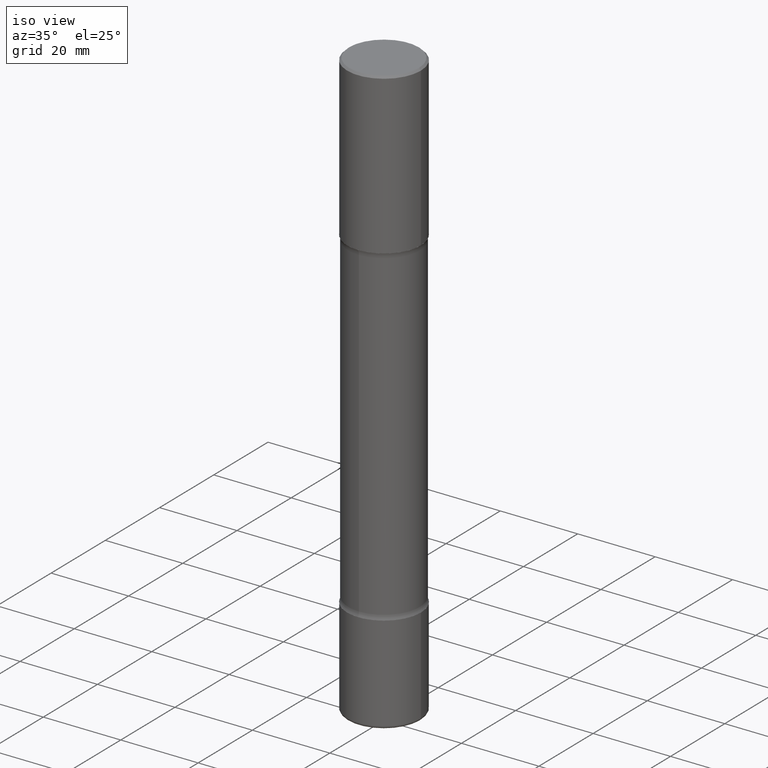
[diagram: clean part render]
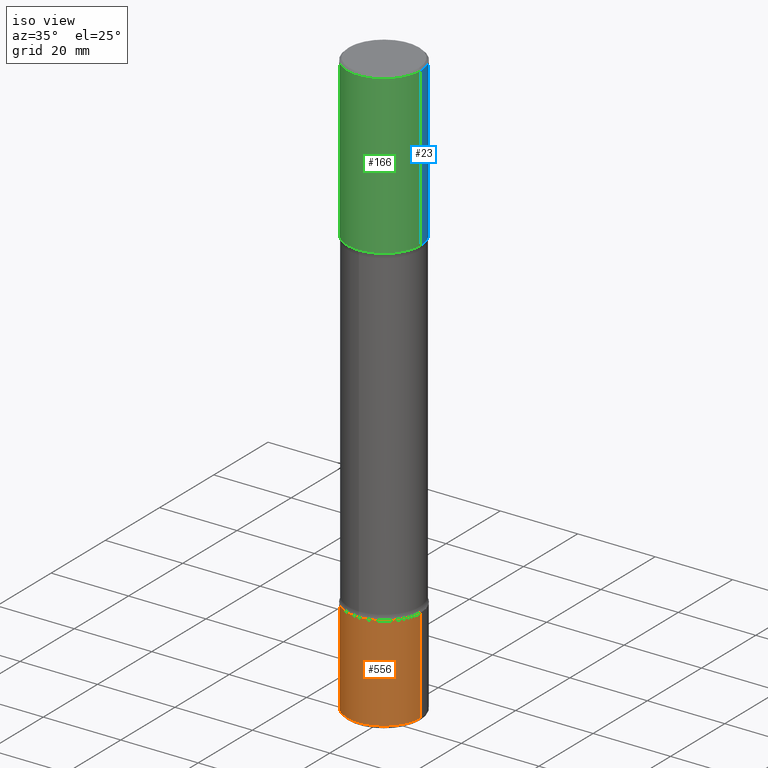
[diagram: same view with three faces highlighted in distinct colors, each labeled with its STEP entity id]
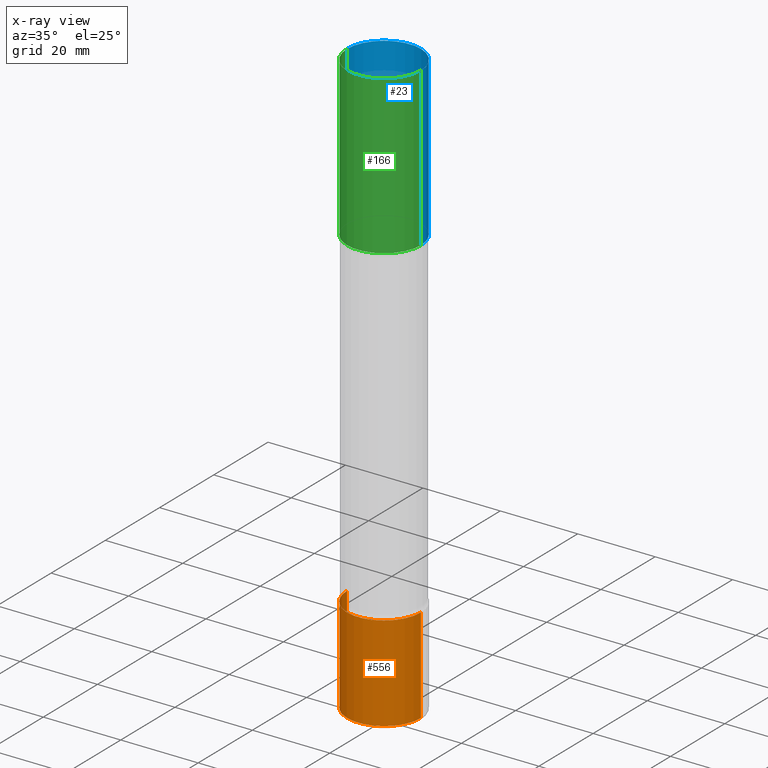
[diagram: x-ray of the same camera — body ghosted, the three highlighted faces saturated]
A machine part, iso view with three faces highlighted in distinct colors.
The next image is the same camera in x-ray (body ghosted, the three faces saturated) — at least one of them is partly hidden behind the body in this view.
Their STEP definitions:

[orange] entity #556 — the highlighted cylindrical surface (partial cylindrical patch) has radius 9.525 mm, axis along (-0, 0, 1).
#7 = DIRECTION ( 'NONE',  ( -2.445468806185136597E-29, 3.491481338843145583E-15, 1.000000000000000000 ) ) ;
#25 = ORIENTED_EDGE ( 'NONE', *, *, #45, .T. ) ;
#40 = CARTESIAN_POINT ( 'NONE',  ( -0.3750000000000002220, 2.664535259100377275E-15, -1.844600658845590719E-29 ) ) ;
#45 = EDGE_CURVE ( 'NONE', #286, #310, #140, .T. ) ;
#52 = ORIENTED_EDGE ( 'NONE', *, *, #425, .F. ) ;
#104 = EDGE_CURVE ( 'NONE', #463, #310, #357, .T. ) ;
#138 = DIRECTION ( 'NONE',  ( 1.000000000000000000, -6.982962677686266711E-15, 4.876176775795935793E-29 ) ) ;
#139 = CARTESIAN_POINT ( 'NONE',  ( 0.3750000000000002220, -2.618611004132351594E-15, 1.828566290923477043E-29 ) ) ;
#140 = LINE ( 'NONE', #139, #503 ) ;
#174 = CARTESIAN_POINT ( 'NONE',  ( -0.3750000000000002220, -1.648623988445427734E-14, -5.000000000000000000 ) ) ;
#176 = FACE_OUTER_BOUND ( 'NONE', #320, .T. ) ;
#180 = DIRECTION ( 'NONE',  ( -2.445468806185136877E-29, 3.491481338843145188E-15, 1.000000000000000000 ) ) ;
#193 = DIRECTION ( 'NONE',  ( 1.000000000000000000, -6.982962677686263555E-15, 0.000000000000000000 ) ) ;
#211 = VECTOR ( 'NONE', #220, 39.37007874015748143 ) ;
#217 = LINE ( 'NONE', #40, #211 ) ;
#219 = CARTESIAN_POINT ( 'NONE',  ( 1.459944877292526494E-28, -2.084414359289357934E-14, -5.969999999999999751 ) ) ;
#220 = DIRECTION ( 'NONE',  ( -2.445468806185136877E-29, 3.491481338843145188E-15, 1.000000000000000000 ) ) ;
#228 = CYLINDRICAL_SURFACE ( 'NONE', #293, 0.3750000000000002220 ) ;
#242 = CARTESIAN_POINT ( 'NONE',  ( -0.3750000000000002776, -1.817960833379319733E-14, -5.969999999999999751 ) ) ;
#250 = VERTEX_POINT ( 'NONE', #242 ) ;
#258 = AXIS2_PLACEMENT_3D ( 'NONE', #323, #7, #193 ) ;
#260 = DIRECTION ( 'NONE',  ( -2.445468806185136597E-29, 3.491481338843145583E-15, 1.000000000000000000 ) ) ;
#280 = CIRCLE ( 'NONE', #393, 0.3750000000000001665 ) ;
#286 = VERTEX_POINT ( 'NONE', #292 ) ;
#292 = CARTESIAN_POINT ( 'NONE',  ( 0.3750000000000002776, -2.346275459702592935E-14, -5.969999999999999751 ) ) ;
#293 = AXIS2_PLACEMENT_3D ( 'NONE', #438, #347, #138 ) ;
#310 = VERTEX_POINT ( 'NONE', #516 ) ;
#320 = EDGE_LOOP ( 'NONE', ( #52, #488, #25, #489 ) ) ;
#323 = CARTESIAN_POINT ( 'NONE',  ( 1.222734403092568523E-28, -1.745740669421572989E-14, -5.000000000000000000 ) ) ;
#347 = DIRECTION ( 'NONE',  ( -2.445468806185136597E-29, 3.491481338843145583E-15, 1.000000000000000000 ) ) ;
#357 = CIRCLE ( 'NONE', #258, 0.3750000000000002220 ) ;
#393 = AXIS2_PLACEMENT_3D ( 'NONE', #219, #260, #515 ) ;
#402 = EDGE_CURVE ( 'NONE', #250, #286, #280, .T. ) ;
#425 = EDGE_CURVE ( 'NONE', #250, #463, #217, .T. ) ;
#438 = CARTESIAN_POINT ( 'NONE',  ( 0.000000000000000000, 0.000000000000000000, 0.000000000000000000 ) ) ;
#463 = VERTEX_POINT ( 'NONE', #174 ) ;
#488 = ORIENTED_EDGE ( 'NONE', *, *, #402, .T. ) ;
#489 = ORIENTED_EDGE ( 'NONE', *, *, #104, .F. ) ;
#503 = VECTOR ( 'NONE', #180, 39.37007874015748143 ) ;
#515 = DIRECTION ( 'NONE',  ( 1.000000000000000000, -6.982962677686269866E-15, 0.000000000000000000 ) ) ;
#516 = CARTESIAN_POINT ( 'NONE',  ( 0.3750000000000002220, -2.007601769834807990E-14, -5.000000000000000000 ) ) ;
#556 = ADVANCED_FACE ( 'NONE', ( #176 ), #228, .T. ) ;

[blue] entity #23 — the highlighted cylindrical surface (partial cylindrical patch) has radius 9.525 mm, axis along (-0, 0, 1).
#23 = ADVANCED_FACE ( 'NONE', ( #187 ), #445, .T. ) ;
#30 = DIRECTION ( 'NONE',  ( 1.000000000000000000, -6.982962677686266711E-15, 0.000000000000000000 ) ) ;
#42 = LINE ( 'NONE', #79, #338 ) ;
#46 = CIRCLE ( 'NONE', #126, 0.3750000000000007772 ) ;
#47 = CARTESIAN_POINT ( 'NONE',  ( 0.000000000000000000, 0.000000000000000000, 0.000000000000000000 ) ) ;
#79 = CARTESIAN_POINT ( 'NONE',  ( 0.3750000000000008327, -2.618611004132355933E-15, 1.828566290923479846E-29 ) ) ;
#80 = DIRECTION ( 'NONE',  ( -2.445468806185136597E-29, 3.491481338843145583E-15, 1.000000000000000000 ) ) ;
#126 = AXIS2_PLACEMENT_3D ( 'NONE', #456, #507, #30 ) ;
#128 = LINE ( 'NONE', #304, #142 ) ;
#142 = VECTOR ( 'NONE', #380, 39.37007874015748143 ) ;
#145 = VERTEX_POINT ( 'NONE', #450 ) ;
#149 = VERTEX_POINT ( 'NONE', #501 ) ;
#175 = CARTESIAN_POINT ( 'NONE',  ( 3.973886810050846409E-29, -5.673657175620110635E-15, -1.624999999999999778 ) ) ;
#187 = FACE_OUTER_BOUND ( 'NONE', #263, .T. ) ;
#231 = DIRECTION ( 'NONE',  ( 1.000000000000000000, -6.982962677686266711E-15, 4.876176775795935232E-29 ) ) ;
#243 = ORIENTED_EDGE ( 'NONE', *, *, #298, .F. ) ;
#263 = EDGE_LOOP ( 'NONE', ( #422, #455, #243, #339 ) ) ;
#277 = VERTEX_POINT ( 'NONE', #331 ) ;
#291 = AXIS2_PLACEMENT_3D ( 'NONE', #175, #80, #465 ) ;
#297 = DIRECTION ( 'NONE',  ( -2.445468806185136877E-29, 3.491481338843145188E-15, 1.000000000000000000 ) ) ;
#298 = EDGE_CURVE ( 'NONE', #145, #364, #46, .T. ) ;
#304 = CARTESIAN_POINT ( 'NONE',  ( -0.3750000000000008327, 2.664535259100381613E-15, -1.844600658845593802E-29 ) ) ;
#306 = CARTESIAN_POINT ( 'NONE',  ( -0.3750000000000007772, 2.548781377355492635E-15, -0.02000000000000000042 ) ) ;
#331 = CARTESIAN_POINT ( 'NONE',  ( 0.3750000000000009437, -8.292268179752466962E-15, -1.624999999999999778 ) ) ;
#333 = EDGE_CURVE ( 'NONE', #149, #364, #128, .T. ) ;
#336 = AXIS2_PLACEMENT_3D ( 'NONE', #47, #353, #231 ) ;
#338 = VECTOR ( 'NONE', #297, 39.37007874015748143 ) ;
#339 = ORIENTED_EDGE ( 'NONE', *, *, #378, .F. ) ;
#341 = EDGE_CURVE ( 'NONE', #277, #149, #532, .T. ) ;
#353 = DIRECTION ( 'NONE',  ( -2.445468806185136597E-29, 3.491481338843145583E-15, 1.000000000000000000 ) ) ;
#364 = VERTEX_POINT ( 'NONE', #306 ) ;
#378 = EDGE_CURVE ( 'NONE', #277, #145, #42, .T. ) ;
#380 = DIRECTION ( 'NONE',  ( -2.445468806185136877E-29, 3.491481338843145188E-15, 1.000000000000000000 ) ) ;
#422 = ORIENTED_EDGE ( 'NONE', *, *, #341, .T. ) ;
#445 = CYLINDRICAL_SURFACE ( 'NONE', #336, 0.3750000000000008327 ) ;
#450 = CARTESIAN_POINT ( 'NONE',  ( 0.3750000000000007772, -2.642516375941192367E-15, -0.02000000000000000042 ) ) ;
#455 = ORIENTED_EDGE ( 'NONE', *, *, #333, .T. ) ;
#456 = CARTESIAN_POINT ( 'NONE',  ( 4.890937612370273159E-31, -6.982962677686291609E-17, -0.02000000000000000042 ) ) ;
#465 = DIRECTION ( 'NONE',  ( 1.000000000000000000, -6.982962677686265922E-15, 0.000000000000000000 ) ) ;
#501 = CARTESIAN_POINT ( 'NONE',  ( -0.3750000000000009437, -2.072081420981044410E-16, -1.624999999999999778 ) ) ;
#507 = DIRECTION ( 'NONE',  ( -2.445468806185136597E-29, 3.491481338843145583E-15, 1.000000000000000000 ) ) ;
#532 = CIRCLE ( 'NONE', #291, 0.3750000000000009437 ) ;

[green] entity #166 — the highlighted cylindrical surface (partial cylindrical patch) has radius 9.525 mm, axis along (-0, 0, 1).
#17 = AXIS2_PLACEMENT_3D ( 'NONE', #535, #55, #146 ) ;
#42 = LINE ( 'NONE', #79, #338 ) ;
#55 = DIRECTION ( 'NONE',  ( -2.445468806185136597E-29, 3.491481338843145583E-15, 1.000000000000000000 ) ) ;
#70 = FACE_OUTER_BOUND ( 'NONE', #214, .T. ) ;
#79 = CARTESIAN_POINT ( 'NONE',  ( 0.3750000000000008327, -2.618611004132355933E-15, 1.828566290923479846E-29 ) ) ;
#111 = CARTESIAN_POINT ( 'NONE',  ( 4.890937612370273159E-31, -6.982962677686291609E-17, -0.02000000000000000042 ) ) ;
#128 = LINE ( 'NONE', #304, #142 ) ;
#142 = VECTOR ( 'NONE', #380, 39.37007874015748143 ) ;
#145 = VERTEX_POINT ( 'NONE', #450 ) ;
#146 = DIRECTION ( 'NONE',  ( 1.000000000000000000, -6.982962677686265922E-15, 0.000000000000000000 ) ) ;
#149 = VERTEX_POINT ( 'NONE', #501 ) ;
#160 = DIRECTION ( 'NONE',  ( -2.445468806185136597E-29, 3.491481338843145583E-15, 1.000000000000000000 ) ) ;
#166 = ADVANCED_FACE ( 'NONE', ( #70 ), #248, .T. ) ;
#199 = DIRECTION ( 'NONE',  ( 1.000000000000000000, -6.982962677686266711E-15, 0.000000000000000000 ) ) ;
#214 = EDGE_LOOP ( 'NONE', ( #457, #418, #299, #484 ) ) ;
#233 = EDGE_CURVE ( 'NONE', #364, #145, #329, .T. ) ;
#248 = CYLINDRICAL_SURFACE ( 'NONE', #420, 0.3750000000000008327 ) ;
#277 = VERTEX_POINT ( 'NONE', #331 ) ;
#285 = DIRECTION ( 'NONE',  ( -2.445468806185136597E-29, 3.491481338843145583E-15, 1.000000000000000000 ) ) ;
#297 = DIRECTION ( 'NONE',  ( -2.445468806185136877E-29, 3.491481338843145188E-15, 1.000000000000000000 ) ) ;
#299 = ORIENTED_EDGE ( 'NONE', *, *, #378, .T. ) ;
#304 = CARTESIAN_POINT ( 'NONE',  ( -0.3750000000000008327, 2.664535259100381613E-15, -1.844600658845593802E-29 ) ) ;
#306 = CARTESIAN_POINT ( 'NONE',  ( -0.3750000000000007772, 2.548781377355492635E-15, -0.02000000000000000042 ) ) ;
#329 = CIRCLE ( 'NONE', #392, 0.3750000000000007772 ) ;
#331 = CARTESIAN_POINT ( 'NONE',  ( 0.3750000000000009437, -8.292268179752466962E-15, -1.624999999999999778 ) ) ;
#333 = EDGE_CURVE ( 'NONE', #149, #364, #128, .T. ) ;
#335 = CARTESIAN_POINT ( 'NONE',  ( 0.000000000000000000, 0.000000000000000000, 0.000000000000000000 ) ) ;
#338 = VECTOR ( 'NONE', #297, 39.37007874015748143 ) ;
#364 = VERTEX_POINT ( 'NONE', #306 ) ;
#369 = DIRECTION ( 'NONE',  ( 1.000000000000000000, -6.982962677686266711E-15, 4.876176775795935232E-29 ) ) ;
#378 = EDGE_CURVE ( 'NONE', #277, #145, #42, .T. ) ;
#380 = DIRECTION ( 'NONE',  ( -2.445468806185136877E-29, 3.491481338843145188E-15, 1.000000000000000000 ) ) ;
#392 = AXIS2_PLACEMENT_3D ( 'NONE', #111, #160, #199 ) ;
#418 = ORIENTED_EDGE ( 'NONE', *, *, #506, .T. ) ;
#420 = AXIS2_PLACEMENT_3D ( 'NONE', #335, #285, #369 ) ;
#450 = CARTESIAN_POINT ( 'NONE',  ( 0.3750000000000007772, -2.642516375941192367E-15, -0.02000000000000000042 ) ) ;
#457 = ORIENTED_EDGE ( 'NONE', *, *, #333, .F. ) ;
#484 = ORIENTED_EDGE ( 'NONE', *, *, #233, .F. ) ;
#501 = CARTESIAN_POINT ( 'NONE',  ( -0.3750000000000009437, -2.072081420981044410E-16, -1.624999999999999778 ) ) ;
#505 = CIRCLE ( 'NONE', #17, 0.3750000000000009437 ) ;
#506 = EDGE_CURVE ( 'NONE', #149, #277, #505, .T. ) ;
#535 = CARTESIAN_POINT ( 'NONE',  ( 3.973886810050846409E-29, -5.673657175620110635E-15, -1.624999999999999778 ) ) ;